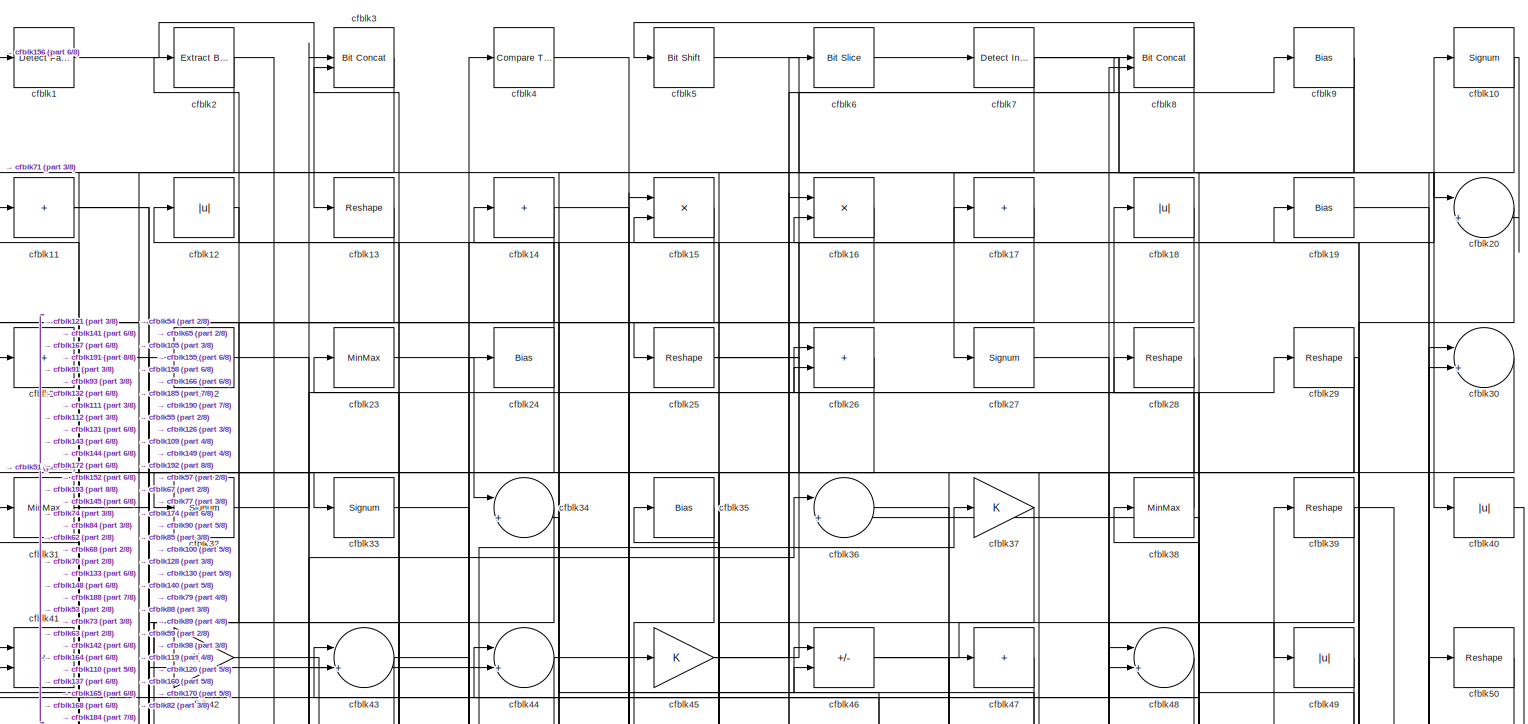
[diagram: root canvas - part 1/8, full width, top band]
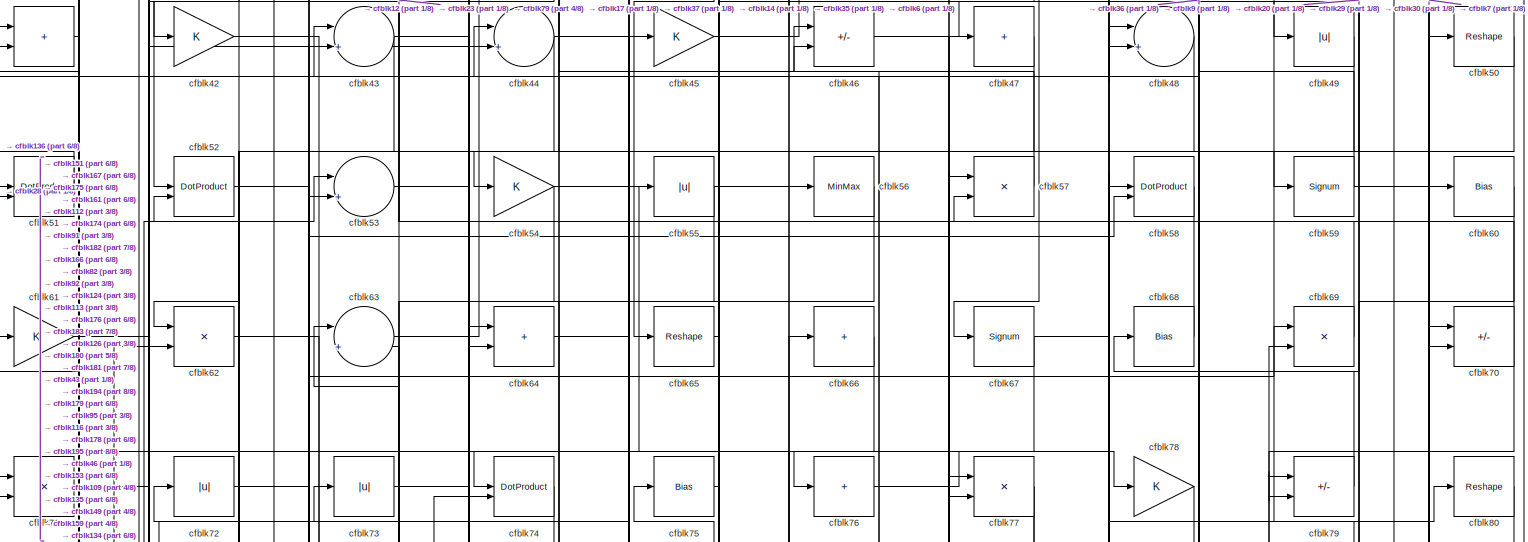
[diagram: root canvas - part 2/8, full width, top band]
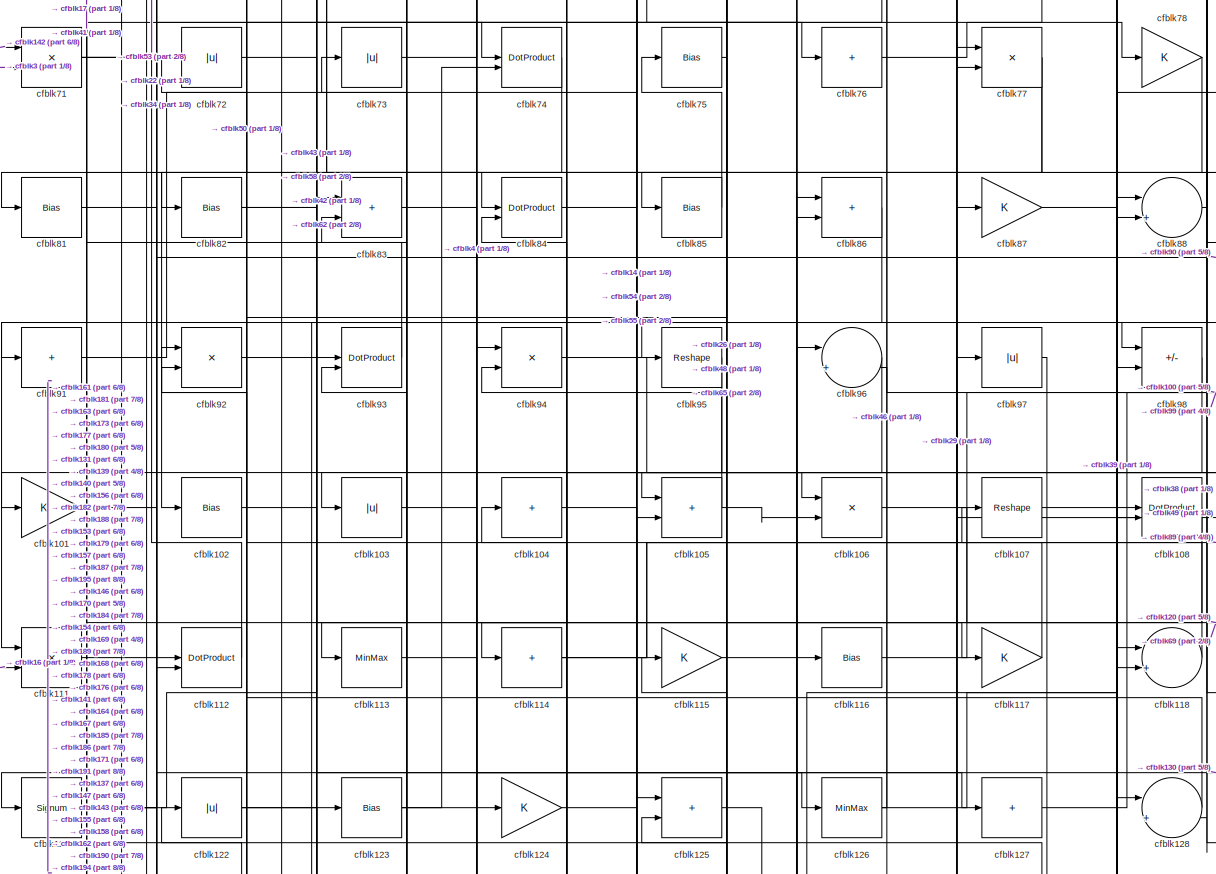
[diagram: root canvas - part 3/8, full width, middle band]
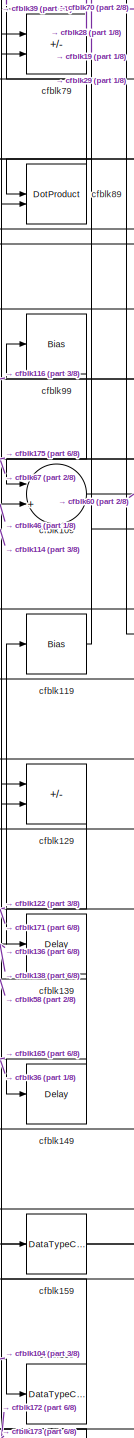
[diagram: root canvas - part 4/8, middle right region]
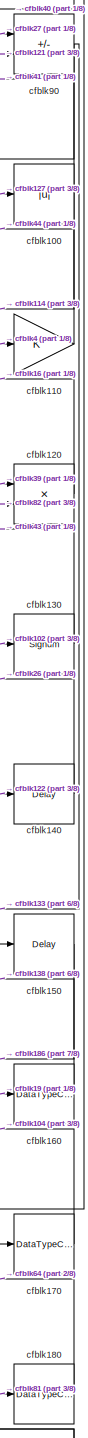
[diagram: root canvas - part 5/8, middle right region]
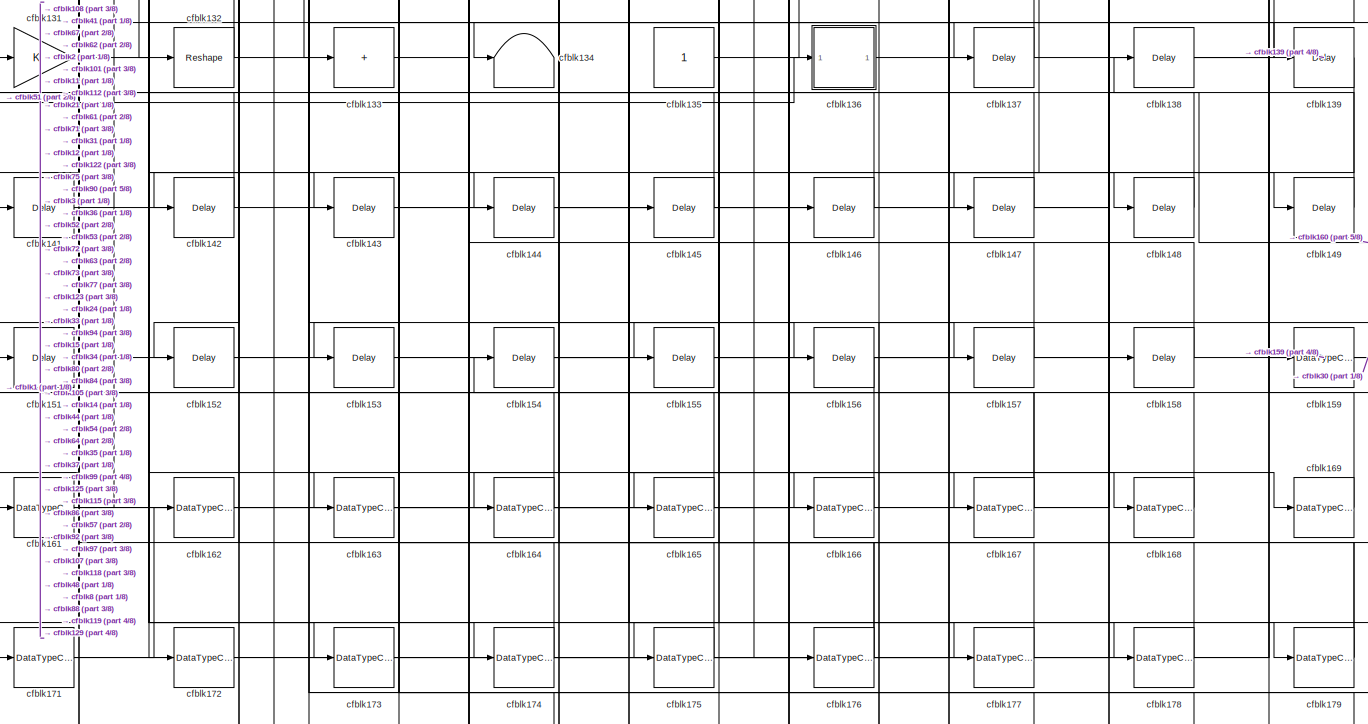
[diagram: root canvas - part 6/8, full width, bottom band]
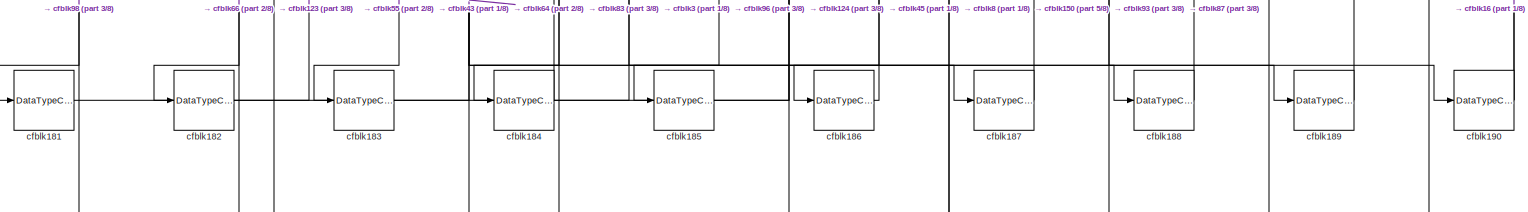
[diagram: root canvas - part 7/8, full width, bottom band]
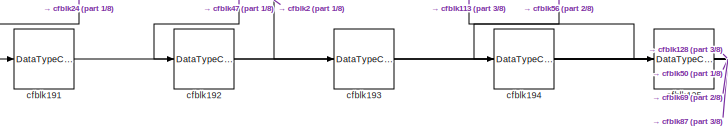
[diagram: root canvas - part 8/8, bottom left region]
MODEL slx_0efebbdd99a8
KIND model
CONFIG AbsTol = auto
CONFIG EnableMultiTasking = off
CONFIG FixedStep = auto
CONFIG MaxStep = auto
CONFIG MinStep = auto
CONFIG RelTol = 1e-3
CONFIG SampleTimeConstraint = Unconstrained
CONFIG SolverName = VariableStepAuto
CONFIG StartTime = 0.0
CONFIG StopTime = 10.0
BLOCK [Reference] cfblk1  REF=hdlsllib/Logic and Bit
Operations/Detect Fall
Nonpositive
  SourceBlock = hdlsllib/Logic and Bit\nOperations/Detect Fall\nNonpositive
  SourceType = Detect Fall Nonpositive
BLOCK [Signum] cfblk10
BLOCK [Abs] cfblk100
  SaturateOnIntegerOverflow = off
BLOCK [Gain] cfblk101
BLOCK [Bias] cfblk102
  Bias = 0.0
  SaturateOnIntegerOverflow = off
BLOCK [Abs] cfblk103
  SaturateOnIntegerOverflow = off
BLOCK [Sum] cfblk104
  IconShape = rectangular
  Inputs = +
BLOCK [Sum] cfblk105
  IconShape = rectangular
BLOCK [Product] cfblk106
  Inputs = */
  RndMeth = Zero
  SaturateOnIntegerOverflow = on
BLOCK [Reshape] cfblk107
BLOCK [DotProduct] cfblk108
  OutDataTypeStr = Inherit: Inherit via internal rule
BLOCK [Sum] cfblk109
  Inputs = |++
BLOCK [Sum] cfblk11
  IconShape = rectangular
  Inputs = +
BLOCK [Gain] cfblk110
BLOCK [Product] cfblk111
  Inputs = */
  RndMeth = Zero
  SaturateOnIntegerOverflow = on
BLOCK [DotProduct] cfblk112
  OutDataTypeStr = Inherit: Inherit via internal rule
BLOCK [MinMax] cfblk113
BLOCK [Sum] cfblk114
  IconShape = rectangular
  Inputs = +
BLOCK [Gain] cfblk115
BLOCK [Bias] cfblk116
  Bias = 0.0
  SaturateOnIntegerOverflow = off
BLOCK [Gain] cfblk117
BLOCK [Sum] cfblk118
  Inputs = |++
BLOCK [Bias] cfblk119
  Bias = 0.0
  SaturateOnIntegerOverflow = off
BLOCK [Abs] cfblk12
  SaturateOnIntegerOverflow = off
BLOCK [Product] cfblk120
  Inputs = */
  RndMeth = Zero
  SaturateOnIntegerOverflow = on
BLOCK [Signum] cfblk121
BLOCK [Abs] cfblk122
  SaturateOnIntegerOverflow = off
BLOCK [Bias] cfblk123
  Bias = 0.0
  SaturateOnIntegerOverflow = off
BLOCK [Gain] cfblk124
BLOCK [Sum] cfblk125
  IconShape = rectangular
BLOCK [MinMax] cfblk126
BLOCK [Sum] cfblk127
  IconShape = rectangular
  Inputs = +
BLOCK [Sum] cfblk128
  Inputs = |++
BLOCK [Sum] cfblk129
  IconShape = rectangular
  Inputs = +-
BLOCK [Reshape] cfblk13
BLOCK [Signum] cfblk130
BLOCK [Gain] cfblk131
BLOCK [Reshape] cfblk132
BLOCK [Sum] cfblk133
  IconShape = rectangular
  Inputs = +
BLOCK [Terminator] cfblk134
BLOCK [Constant] cfblk135
  SampleTime = -1
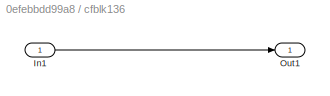
BLOCK [SubSystem] cfblk136
  LibrarySourceBlock = hdlsllib/Ports &\nSubsystems/Subsystem
BLOCK [Inport] cfblk136/In1
BLOCK [Outport] cfblk136/Out1
BLOCK [Delay] cfblk137
  InputPortMap = u0
  SampleTime = 1
BLOCK [Delay] cfblk138
  InputPortMap = u0
  SampleTime = 1
BLOCK [Delay] cfblk139
  InputPortMap = u0
  SampleTime = 1
BLOCK [Sum] cfblk14
  IconShape = rectangular
  Inputs = +
BLOCK [Delay] cfblk140
  InputPortMap = u0
  SampleTime = 1
BLOCK [Delay] cfblk141
  InputPortMap = u0
  SampleTime = 1
BLOCK [Delay] cfblk142
  InputPortMap = u0
  SampleTime = 1
BLOCK [Delay] cfblk143
  InputPortMap = u0
  SampleTime = 1
BLOCK [Delay] cfblk144
  InputPortMap = u0
  SampleTime = 1
BLOCK [Delay] cfblk145
  InputPortMap = u0
  SampleTime = 1
BLOCK [Delay] cfblk146
  InputPortMap = u0
  SampleTime = 1
BLOCK [Delay] cfblk147
  InputPortMap = u0
  SampleTime = 1
BLOCK [Delay] cfblk148
  InputPortMap = u0
  SampleTime = 1
BLOCK [Delay] cfblk149
  InputPortMap = u0
  SampleTime = 1
BLOCK [Product] cfblk15
  Inputs = */
  RndMeth = Zero
  SaturateOnIntegerOverflow = on
BLOCK [Delay] cfblk150
  InputPortMap = u0
  SampleTime = 1
BLOCK [Delay] cfblk151
  InputPortMap = u0
  SampleTime = 1
BLOCK [Delay] cfblk152
  InputPortMap = u0
  SampleTime = 1
BLOCK [Delay] cfblk153
  InputPortMap = u0
  SampleTime = 1
BLOCK [Delay] cfblk154
  InputPortMap = u0
  SampleTime = 1
BLOCK [Delay] cfblk155
  InputPortMap = u0
  SampleTime = 1
BLOCK [Delay] cfblk156
  InputPortMap = u0
  SampleTime = 1
BLOCK [Delay] cfblk157
  InputPortMap = u0
  SampleTime = 1
BLOCK [Delay] cfblk158
  InputPortMap = u0
  SampleTime = 1
BLOCK [DataTypeConversion] cfblk159
  OutDataTypeStr = uint8
  RndMeth = Floor
  SaturateOnIntegerOverflow = off
BLOCK [Product] cfblk16
  Inputs = */
  RndMeth = Zero
  SaturateOnIntegerOverflow = on
BLOCK [DataTypeConversion] cfblk160
  OutDataTypeStr = uint8
  RndMeth = Floor
  SaturateOnIntegerOverflow = off
BLOCK [DataTypeConversion] cfblk161
  RndMeth = Floor
  SaturateOnIntegerOverflow = off
BLOCK [DataTypeConversion] cfblk162
  OutDataTypeStr = uint8
  RndMeth = Floor
  SaturateOnIntegerOverflow = off
BLOCK [DataTypeConversion] cfblk163
  OutDataTypeStr = uint8
  RndMeth = Floor
  SaturateOnIntegerOverflow = off
BLOCK [DataTypeConversion] cfblk164
  RndMeth = Floor
  SaturateOnIntegerOverflow = off
BLOCK [DataTypeConversion] cfblk165
  OutDataTypeStr = uint8
  RndMeth = Floor
  SaturateOnIntegerOverflow = off
BLOCK [DataTypeConversion] cfblk166
  OutDataTypeStr = uint8
  RndMeth = Floor
  SaturateOnIntegerOverflow = off
BLOCK [DataTypeConversion] cfblk167
  RndMeth = Floor
  SaturateOnIntegerOverflow = off
BLOCK [DataTypeConversion] cfblk168
  OutDataTypeStr = uint8
  RndMeth = Floor
  SaturateOnIntegerOverflow = off
BLOCK [DataTypeConversion] cfblk169
  OutDataTypeStr = uint8
  RndMeth = Floor
  SaturateOnIntegerOverflow = off
BLOCK [Sum] cfblk17
  IconShape = rectangular
  Inputs = +
BLOCK [DataTypeConversion] cfblk170
  OutDataTypeStr = uint8
  RndMeth = Floor
  SaturateOnIntegerOverflow = off
BLOCK [DataTypeConversion] cfblk171
  RndMeth = Floor
  SaturateOnIntegerOverflow = off
BLOCK [DataTypeConversion] cfblk172
  OutDataTypeStr = uint8
  RndMeth = Floor
  SaturateOnIntegerOverflow = off
BLOCK [DataTypeConversion] cfblk173
  OutDataTypeStr = uint8
  RndMeth = Floor
  SaturateOnIntegerOverflow = off
BLOCK [DataTypeConversion] cfblk174
  RndMeth = Floor
  SaturateOnIntegerOverflow = off
BLOCK [DataTypeConversion] cfblk175
  OutDataTypeStr = uint8
  RndMeth = Floor
  SaturateOnIntegerOverflow = off
BLOCK [DataTypeConversion] cfblk176
  RndMeth = Floor
  SaturateOnIntegerOverflow = off
BLOCK [DataTypeConversion] cfblk177
  OutDataTypeStr = uint8
  RndMeth = Floor
  SaturateOnIntegerOverflow = off
BLOCK [DataTypeConversion] cfblk178
  OutDataTypeStr = uint8
  RndMeth = Floor
  SaturateOnIntegerOverflow = off
BLOCK [DataTypeConversion] cfblk179
  RndMeth = Floor
  SaturateOnIntegerOverflow = off
BLOCK [Abs] cfblk18
  SaturateOnIntegerOverflow = off
BLOCK [DataTypeConversion] cfblk180
  OutDataTypeStr = uint8
  RndMeth = Floor
  SaturateOnIntegerOverflow = off
BLOCK [DataTypeConversion] cfblk181
  OutDataTypeStr = uint8
  RndMeth = Floor
  SaturateOnIntegerOverflow = off
BLOCK [DataTypeConversion] cfblk182
  OutDataTypeStr = uint8
  RndMeth = Floor
  SaturateOnIntegerOverflow = off
BLOCK [DataTypeConversion] cfblk183
  OutDataTypeStr = uint8
  RndMeth = Floor
  SaturateOnIntegerOverflow = off
BLOCK [DataTypeConversion] cfblk184
  RndMeth = Floor
  SaturateOnIntegerOverflow = off
BLOCK [DataTypeConversion] cfblk185
  OutDataTypeStr = uint8
  RndMeth = Floor
  SaturateOnIntegerOverflow = off
BLOCK [DataTypeConversion] cfblk186
  OutDataTypeStr = uint8
  RndMeth = Floor
  SaturateOnIntegerOverflow = off
BLOCK [DataTypeConversion] cfblk187
  OutDataTypeStr = uint8
  RndMeth = Floor
  SaturateOnIntegerOverflow = off
BLOCK [DataTypeConversion] cfblk188
  OutDataTypeStr = uint8
  RndMeth = Floor
  SaturateOnIntegerOverflow = off
BLOCK [DataTypeConversion] cfblk189
  OutDataTypeStr = uint8
  RndMeth = Floor
  SaturateOnIntegerOverflow = off
BLOCK [Bias] cfblk19
  Bias = 0.0
  SaturateOnIntegerOverflow = off
BLOCK [DataTypeConversion] cfblk190
  RndMeth = Floor
  SaturateOnIntegerOverflow = off
BLOCK [DataTypeConversion] cfblk191
  OutDataTypeStr = uint8
  RndMeth = Floor
  SaturateOnIntegerOverflow = off
BLOCK [DataTypeConversion] cfblk192
  OutDataTypeStr = uint8
  RndMeth = Floor
  SaturateOnIntegerOverflow = off
BLOCK [DataTypeConversion] cfblk193
  OutDataTypeStr = uint8
  RndMeth = Floor
  SaturateOnIntegerOverflow = off
BLOCK [DataTypeConversion] cfblk194
  RndMeth = Floor
  SaturateOnIntegerOverflow = off
BLOCK [DataTypeConversion] cfblk195
  OutDataTypeStr = uint8
  RndMeth = Floor
  SaturateOnIntegerOverflow = off
BLOCK [Reference] cfblk2  REF=simulink/Logic and Bit
Operations/Extract Bits
  LibrarySourceBlock = hdlsllib/Logic and Bit\nOperations/Extract Bits
  SourceBlock = simulink/Logic and Bit\nOperations/Extract Bits
  SourceType = Extract Bits
BLOCK [Sum] cfblk20
  Inputs = |++
BLOCK [Sum] cfblk21
  IconShape = rectangular
  Inputs = +
BLOCK [Bias] cfblk22
  Bias = 0.0
  SaturateOnIntegerOverflow = off
BLOCK [MinMax] cfblk23
BLOCK [Bias] cfblk24
  Bias = 0.0
  SaturateOnIntegerOverflow = off
BLOCK [Reshape] cfblk25
BLOCK [Sum] cfblk26
  IconShape = rectangular
BLOCK [Signum] cfblk27
BLOCK [Reshape] cfblk28
BLOCK [Reshape] cfblk29
BLOCK [Reference] cfblk3  REF=hdlsllib/Logic and Bit
Operations/Bit Concat
  SourceBlock = hdlsllib/Logic and Bit\nOperations/Bit Concat
  SourceType = Bit Concat
BLOCK [Sum] cfblk30
  Inputs = |++
BLOCK [MinMax] cfblk31
BLOCK [Signum] cfblk32
BLOCK [Signum] cfblk33
BLOCK [Sum] cfblk34
  Inputs = |++
BLOCK [Bias] cfblk35
  Bias = 0.0
  SaturateOnIntegerOverflow = off
BLOCK [Sum] cfblk36
  Inputs = |++
BLOCK [Gain] cfblk37
BLOCK [MinMax] cfblk38
BLOCK [Reshape] cfblk39
BLOCK [Reference] cfblk4  REF=hdlsllib/Logic and Bit
Operations/Compare
To Constant
  SourceBlock = hdlsllib/Logic and Bit\nOperations/Compare\nTo Constant
  SourceType = Compare To Constant
BLOCK [Abs] cfblk40
  SaturateOnIntegerOverflow = off
BLOCK [Sum] cfblk41
  IconShape = rectangular
BLOCK [Gain] cfblk42
BLOCK [Sum] cfblk43
  Inputs = |++
BLOCK [Sum] cfblk44
  Inputs = |++
BLOCK [Gain] cfblk45
BLOCK [Sum] cfblk46
  IconShape = rectangular
  Inputs = +-
BLOCK [Sum] cfblk47
  IconShape = rectangular
  Inputs = +
BLOCK [Sum] cfblk48
  Inputs = |++
BLOCK [Abs] cfblk49
  SaturateOnIntegerOverflow = off
BLOCK [Reference] cfblk5  REF=hdlsllib/Logic and Bit
Operations/Bit Shift
  SourceBlock = hdlsllib/Logic and Bit\nOperations/Bit Shift
  SourceType = Bit Shift
BLOCK [Reshape] cfblk50
BLOCK [DotProduct] cfblk51
  OutDataTypeStr = Inherit: Inherit via internal rule
BLOCK [DotProduct] cfblk52
  OutDataTypeStr = Inherit: Inherit via internal rule
BLOCK [Sum] cfblk53
  Inputs = |++
BLOCK [Gain] cfblk54
BLOCK [Abs] cfblk55
  SaturateOnIntegerOverflow = off
BLOCK [MinMax] cfblk56
BLOCK [Product] cfblk57
  Inputs = */
  RndMeth = Zero
  SaturateOnIntegerOverflow = on
BLOCK [DotProduct] cfblk58
  OutDataTypeStr = Inherit: Inherit via internal rule
BLOCK [Signum] cfblk59
BLOCK [Reference] cfblk6  REF=hdlsllib/Logic and Bit
Operations/Bit Slice
  SourceBlock = hdlsllib/Logic and Bit\nOperations/Bit Slice
  SourceType = Bit Slice
BLOCK [Bias] cfblk60
  Bias = 0.0
  SaturateOnIntegerOverflow = off
BLOCK [Gain] cfblk61
BLOCK [Product] cfblk62
  Inputs = */
  RndMeth = Zero
  SaturateOnIntegerOverflow = on
BLOCK [Sum] cfblk63
  Inputs = |++
BLOCK [Sum] cfblk64
  IconShape = rectangular
BLOCK [Reshape] cfblk65
BLOCK [Sum] cfblk66
  IconShape = rectangular
  Inputs = +
BLOCK [Signum] cfblk67
BLOCK [Bias] cfblk68
  Bias = 0.0
  SaturateOnIntegerOverflow = off
BLOCK [Product] cfblk69
  Inputs = */
  RndMeth = Zero
  SaturateOnIntegerOverflow = on
BLOCK [Reference] cfblk7  REF=simulink/Logic and Bit
Operations/Detect
Increase
  LibrarySourceBlock = hdlsllib/Logic and Bit\nOperations/Detect\nIncrease
  SourceBlock = simulink/Logic and Bit\nOperations/Detect\nIncrease
  SourceType = Detect Increase
BLOCK [Sum] cfblk70
  IconShape = rectangular
  Inputs = +-
BLOCK [Product] cfblk71
  Inputs = */
  RndMeth = Zero
  SaturateOnIntegerOverflow = on
BLOCK [Abs] cfblk72
  SaturateOnIntegerOverflow = off
BLOCK [Abs] cfblk73
  SaturateOnIntegerOverflow = off
BLOCK [DotProduct] cfblk74
  OutDataTypeStr = Inherit: Inherit via internal rule
BLOCK [Bias] cfblk75
  Bias = 0.0
  SaturateOnIntegerOverflow = off
BLOCK [Sum] cfblk76
  IconShape = rectangular
  Inputs = +
BLOCK [Product] cfblk77
  Inputs = */
  RndMeth = Zero
  SaturateOnIntegerOverflow = on
BLOCK [Gain] cfblk78
BLOCK [Sum] cfblk79
  IconShape = rectangular
  Inputs = +-
BLOCK [Reference] cfblk8  REF=hdlsllib/Logic and Bit
Operations/Bit Concat
  SourceBlock = hdlsllib/Logic and Bit\nOperations/Bit Concat
  SourceType = Bit Concat
BLOCK [Reshape] cfblk80
BLOCK [Bias] cfblk81
  Bias = 0.0
  SaturateOnIntegerOverflow = off
BLOCK [Bias] cfblk82
  Bias = 0.0
  SaturateOnIntegerOverflow = off
BLOCK [Sum] cfblk83
  IconShape = rectangular
BLOCK [DotProduct] cfblk84
  OutDataTypeStr = Inherit: Inherit via internal rule
BLOCK [Bias] cfblk85
  Bias = 0.0
  SaturateOnIntegerOverflow = off
BLOCK [Sum] cfblk86
  IconShape = rectangular
BLOCK [Gain] cfblk87
BLOCK [Sum] cfblk88
  Inputs = |++
BLOCK [DotProduct] cfblk89
  OutDataTypeStr = Inherit: Inherit via internal rule
BLOCK [Bias] cfblk9
  Bias = 0.0
  SaturateOnIntegerOverflow = off
BLOCK [Sum] cfblk90
  IconShape = rectangular
  Inputs = +-
BLOCK [Sum] cfblk91
  IconShape = rectangular
  Inputs = +
BLOCK [Product] cfblk92
  Inputs = */
  RndMeth = Zero
  SaturateOnIntegerOverflow = on
BLOCK [DotProduct] cfblk93
  OutDataTypeStr = Inherit: Inherit via internal rule
BLOCK [Product] cfblk94
  Inputs = */
  RndMeth = Zero
  SaturateOnIntegerOverflow = on
BLOCK [Reshape] cfblk95
BLOCK [Sum] cfblk96
  Inputs = |++
BLOCK [Abs] cfblk97
  SaturateOnIntegerOverflow = off
BLOCK [Sum] cfblk98
  IconShape = rectangular
  Inputs = +-
BLOCK [Bias] cfblk99
  Bias = 0.0
  SaturateOnIntegerOverflow = off
NET cfblk100:1 -> cfblk114:1, cfblk41:1
LINE cfblk101:1 -> cfblk177:1
LINE cfblk102:1 -> cfblk130:1
LINE cfblk103:1 -> cfblk117:1
LINE cfblk104:1 -> cfblk169:1
NET cfblk105:1 -> cfblk106:2, cfblk94:2
LINE cfblk106:1 -> cfblk118:2
LINE cfblk107:1 -> cfblk158:1
LINE cfblk108:1 -> cfblk161:1
LINE cfblk109:1 -> cfblk60:1
NET cfblk10:1 -> cfblk20:2, cfblk27:1
LINE cfblk110:1 -> cfblk44:1
LINE cfblk111:1 -> cfblk22:1
LINE cfblk112:1 -> cfblk53:1
LINE cfblk113:1 -> cfblk195:1
NET cfblk114:1 -> cfblk77:1, cfblk89:2
LINE cfblk115:1 -> cfblk167:1
LINE cfblk116:1 -> cfblk99:1
LINE cfblk117:1 -> cfblk107:1
LINE cfblk118:1 -> cfblk92:1
LINE cfblk119:1 -> cfblk19:1
NET cfblk11:1 -> cfblk143:1, cfblk144:1
LINE cfblk120:1 -> cfblk16:2
NET cfblk121:1 -> cfblk127:1, cfblk43:2, cfblk90:2
NET cfblk122:1 -> cfblk139:1, cfblk140:1
NET cfblk123:1 -> cfblk157:1, cfblk74:2
LINE cfblk124:1 -> cfblk189:1
LINE cfblk125:1 -> cfblk176:1
NET cfblk126:1 -> cfblk46:2, cfblk88:1
LINE cfblk127:1 -> cfblk100:1
LINE cfblk128:1 -> cfblk72:1
LINE cfblk129:1 -> cfblk171:1
LINE cfblk12:1 -> cfblk152:1
LINE cfblk130:1 -> cfblk43:1
LINE cfblk131:1 -> cfblk44:2
NET cfblk132:1 -> cfblk31:1, cfblk36:1
LINE cfblk133:1 -> cfblk24:1
LINE cfblk135:1 -> cfblk80:1
LINE cfblk136/In1:1 -> cfblk136/Out1:1
LINE cfblk136:1 -> cfblk119:1
LINE cfblk137:1 -> cfblk92:2
LINE cfblk138:1 -> cfblk159:1
LINE cfblk139:1 -> cfblk165:1
LINE cfblk13:1 -> cfblk42:1
LINE cfblk140:1 -> cfblk26:2
LINE cfblk141:1 -> cfblk86:1
LINE cfblk142:1 -> cfblk71:1
LINE cfblk143:1 -> cfblk118:1
LINE cfblk144:1 -> cfblk8:2
LINE cfblk145:1 -> cfblk3:1
LINE cfblk146:1 -> cfblk84:2
LINE cfblk147:1 -> cfblk112:1
LINE cfblk148:1 -> cfblk34:2
LINE cfblk149:1 -> cfblk58:1
NET cfblk14:1 -> cfblk137:1, cfblk91:1
LINE cfblk150:1 -> cfblk186:1
LINE cfblk151:1 -> cfblk53:2
LINE cfblk152:1 -> cfblk30:1
LINE cfblk153:1 -> cfblk57:1
LINE cfblk154:1 -> cfblk105:2
LINE cfblk155:1 -> cfblk88:2
LINE cfblk156:1 -> cfblk1:1
LINE cfblk157:1 -> cfblk94:1
LINE cfblk158:1 -> cfblk35:1
LINE cfblk159:1 -> cfblk70:1
LINE cfblk15:1 -> cfblk164:1
LINE cfblk160:1 -> cfblk138:1
NET cfblk161:1 -> cfblk145:1, cfblk146:1, cfblk62:2
LINE cfblk162:1 -> cfblk108:1
LINE cfblk163:1 -> cfblk108:2
NET cfblk164:1 -> cfblk122:1, cfblk86:2
LINE cfblk165:1 -> cfblk15:1
LINE cfblk166:1 -> cfblk15:2
NET cfblk167:1 -> cfblk11:1, cfblk51:1
LINE cfblk168:1 -> cfblk115:1
LINE cfblk169:1 -> cfblk79:1
LINE cfblk16:1 -> cfblk111:2
LINE cfblk170:1 -> cfblk104:1
NET cfblk171:1 -> cfblk162:1, cfblk97:1
LINE cfblk172:1 -> cfblk129:1
LINE cfblk173:1 -> cfblk129:2
NET cfblk174:1 -> cfblk48:1, cfblk63:1
LINE cfblk175:1 -> cfblk61:1
NET cfblk176:1 -> cfblk154:1, cfblk63:2
LINE cfblk177:1 -> cfblk125:1
LINE cfblk178:1 -> cfblk125:2
NET cfblk179:1 -> cfblk52:2, cfblk73:1
LINE cfblk17:1 -> cfblk121:1
LINE cfblk180:1 -> cfblk64:1
LINE cfblk181:1 -> cfblk64:2
LINE cfblk182:1 -> cfblk123:1
LINE cfblk183:1 -> cfblk66:1
NET cfblk184:1 -> cfblk3:2, cfblk45:1
LINE cfblk185:1 -> cfblk96:1
LINE cfblk186:1 -> cfblk96:2
LINE cfblk187:1 -> cfblk93:1
LINE cfblk188:1 -> cfblk83:1
LINE cfblk189:1 -> cfblk83:2
LINE cfblk18:1 -> cfblk25:1
NET cfblk190:1 -> cfblk16:1, cfblk93:2
LINE cfblk191:1 -> cfblk87:1
LINE cfblk192:1 -> cfblk50:1
LINE cfblk193:1 -> cfblk47:1
NET cfblk194:1 -> cfblk128:1, cfblk69:2
LINE cfblk195:1 -> cfblk56:1
LINE cfblk19:1 -> cfblk160:1
LINE cfblk1:1 -> cfblk13:1
LINE cfblk20:1 -> cfblk59:1
LINE cfblk21:1 -> cfblk172:1
LINE cfblk22:1 -> cfblk74:1
LINE cfblk23:1 -> cfblk34:1
NET cfblk24:1 -> cfblk191:1, cfblk2:1
NET cfblk25:1 -> cfblk48:2, cfblk8:1
LINE cfblk26:1 -> cfblk105:1
LINE cfblk27:1 -> cfblk90:1
LINE cfblk28:1 -> cfblk51:2
NET cfblk29:1 -> cfblk67:1, cfblk77:2, cfblk89:1
NET cfblk2:1 -> cfblk132:1, cfblk193:1
LINE cfblk30:1 -> cfblk32:1
LINE cfblk31:1 -> cfblk33:1
LINE cfblk32:1 -> cfblk29:1
LINE cfblk33:1 -> cfblk148:1
LINE cfblk34:1 -> cfblk112:2
LINE cfblk35:1 -> cfblk65:1
LINE cfblk36:1 -> cfblk149:1
LINE cfblk37:1 -> cfblk155:1
LINE cfblk38:1 -> cfblk18:1
NET cfblk39:1 -> cfblk120:1, cfblk98:2
LINE cfblk3:1 -> cfblk71:2
LINE cfblk40:1 -> cfblk170:1
LINE cfblk41:1 -> cfblk141:1
LINE cfblk42:1 -> cfblk84:1
NET cfblk43:1 -> cfblk188:1, cfblk62:1
NET cfblk44:1 -> cfblk142:1, cfblk168:1
NET cfblk45:1 -> cfblk10:1, cfblk9:1
NET cfblk46:1 -> cfblk109:2, cfblk49:1
LINE cfblk47:1 -> cfblk192:1
LINE cfblk48:1 -> cfblk85:1
LINE cfblk49:1 -> cfblk98:1
LINE cfblk4:1 -> cfblk110:1
LINE cfblk50:1 -> cfblk82:1
LINE cfblk51:1 -> cfblk136:1
LINE cfblk52:1 -> cfblk166:1
NET cfblk53:1 -> cfblk126:1, cfblk17:1
NET cfblk54:1 -> cfblk113:1, cfblk116:1, cfblk178:1, cfblk46:1
NET cfblk55:1 -> cfblk183:1, cfblk6:1
LINE cfblk56:1 -> cfblk194:1
LINE cfblk57:1 -> cfblk14:1
LINE cfblk58:1 -> cfblk57:2
NET cfblk59:1 -> cfblk30:2, cfblk36:2
LINE cfblk5:1 -> cfblk40:1
LINE cfblk60:1 -> cfblk68:1
LINE cfblk61:1 -> cfblk174:1
LINE cfblk62:1 -> cfblk124:1
LINE cfblk63:1 -> cfblk37:1
LINE cfblk64:1 -> cfblk179:1
LINE cfblk65:1 -> cfblk95:1
LINE cfblk66:1 -> cfblk182:1
NET cfblk67:1 -> cfblk109:1, cfblk151:1
LINE cfblk68:1 -> cfblk12:1
LINE cfblk69:1 -> cfblk52:1
LINE cfblk6:1 -> cfblk7:1
NET cfblk70:1 -> cfblk23:1, cfblk79:2
NET cfblk71:1 -> cfblk163:1, cfblk173:1, cfblk76:1
LINE cfblk72:1 -> cfblk156:1
LINE cfblk73:1 -> cfblk4:1
LINE cfblk74:1 -> cfblk102:1
LINE cfblk75:1 -> cfblk131:1
LINE cfblk76:1 -> cfblk78:1
NET cfblk77:1 -> cfblk101:1, cfblk153:1
LINE cfblk78:1 -> cfblk81:1
LINE cfblk79:1 -> cfblk28:1
NET cfblk7:1 -> cfblk20:1, cfblk21:1, cfblk70:2
LINE cfblk80:1 -> cfblk134:1
LINE cfblk81:1 -> cfblk180:1
NET cfblk82:1 -> cfblk120:2, cfblk69:1
LINE cfblk83:1 -> cfblk187:1
LINE cfblk84:1 -> cfblk26:1
LINE cfblk85:1 -> cfblk75:1
LINE cfblk86:1 -> cfblk111:1
LINE cfblk87:1 -> cfblk190:1
LINE cfblk88:1 -> cfblk38:1
LINE cfblk89:1 -> cfblk39:1
NET cfblk8:1 -> cfblk185:1, cfblk5:1
NET cfblk90:1 -> cfblk133:1, cfblk150:1
LINE cfblk91:1 -> cfblk55:1
LINE cfblk92:1 -> cfblk58:2
LINE cfblk93:1 -> cfblk41:2
LINE cfblk94:1 -> cfblk106:1
LINE cfblk95:1 -> cfblk103:1
LINE cfblk96:1 -> cfblk184:1
LINE cfblk97:1 -> cfblk147:1
LINE cfblk98:1 -> cfblk181:1
LINE cfblk99:1 -> cfblk175:1
NET cfblk9:1 -> cfblk128:2, cfblk54:1
note: NET lines group one-source signal fan-out (src -> all destinations, sorted); 1:1 wires keep LINE
